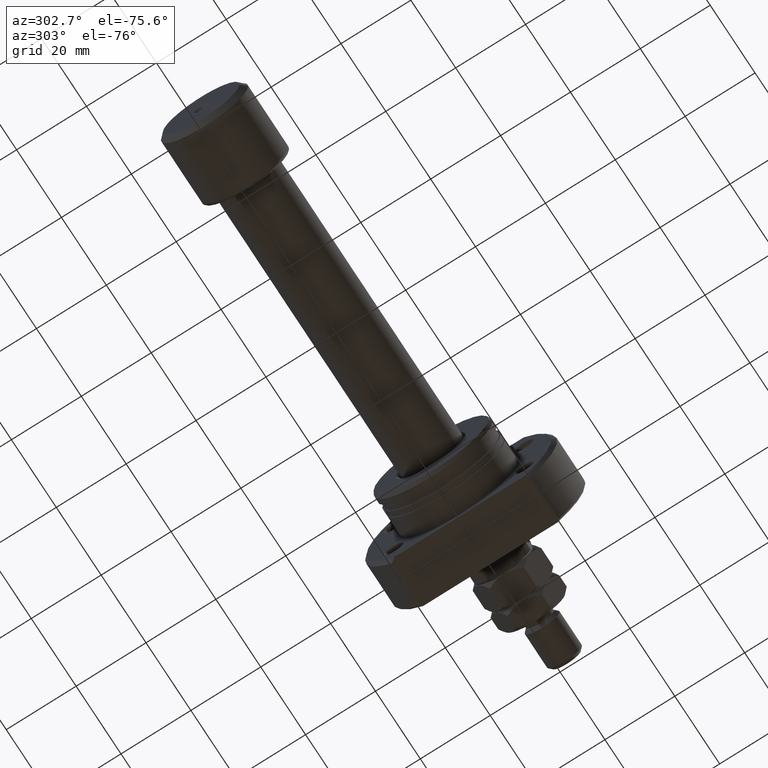
[diagram: clean part render]
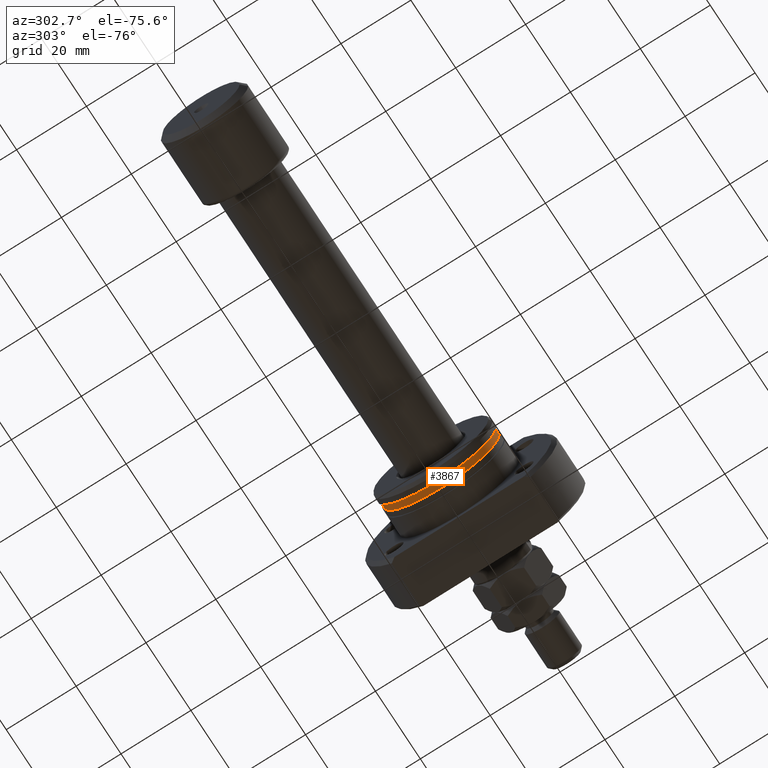
[diagram: same view with one face highlighted and labeled with its STEP entity id]
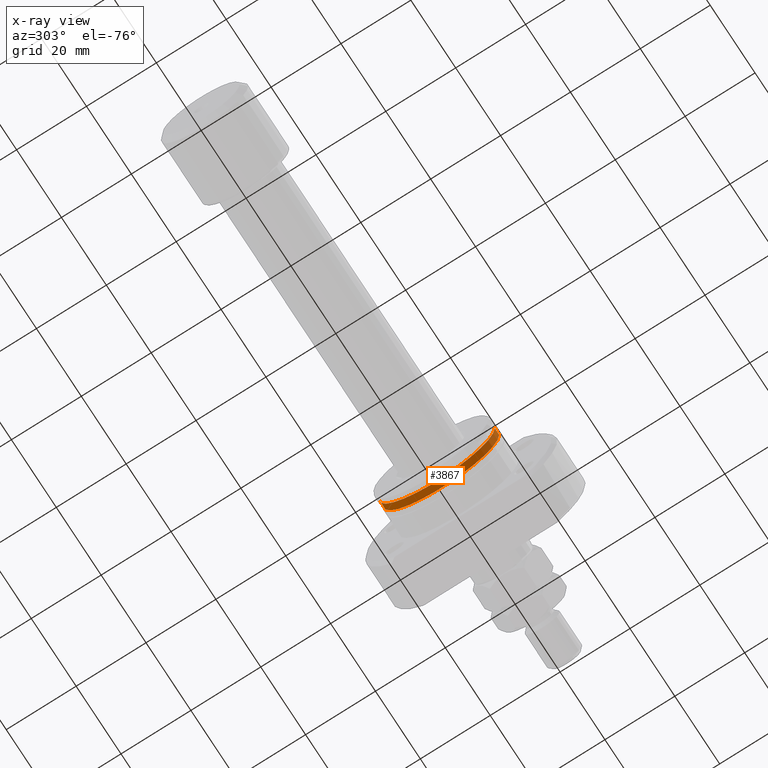
[diagram: x-ray of the same camera — body ghosted, the highlighted face saturated]
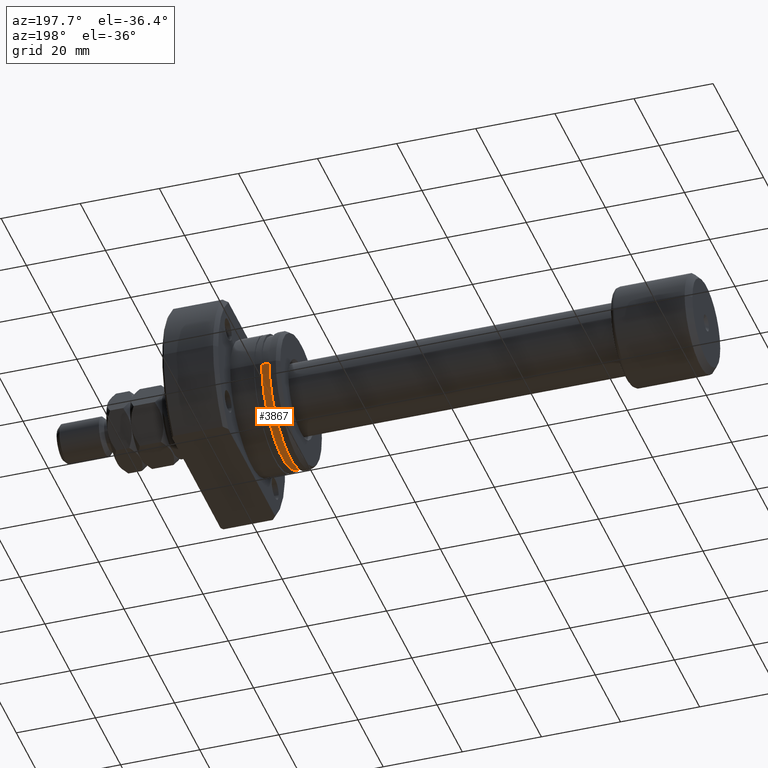
[diagram: same view with one face highlighted and labeled with its STEP entity id]
A machine part, auxiliary view. The second image highlights one B-rep face of the part: STEP entity #3867.
The next image is the same camera in x-ray: the body ghosted, the highlighted face saturated — about 0% of this face is hidden behind the body in this view.
A second angle (auxiliary view) of the same face is appended — the face is thin or edge-on in the first view.
In plain terms, the highlighted cylindrical surface (partial cylindrical patch) has radius 16.5 mm, axis along (1, 0, 0).
Its self-contained STEP definition (entity closure, byte-faithful):
#144 = DIRECTION ( 'NONE',  ( 0.000000000000000000, 1.000000000000000000, 0.000000000000000000 ) ) ;
#180 = CIRCLE ( 'NONE', #1909, 16.49999999999999645 ) ;
#253 = CARTESIAN_POINT ( 'NONE',  ( 2.699999999999782574, 16.49999999999999289, 0.000000000000000000 ) ) ;
#389 = DIRECTION ( 'NONE',  ( 1.000000000000000000, 9.242617352055502386E-18, -0.000000000000000000 ) ) ;
#502 = EDGE_CURVE ( 'NONE', #2560, #3709, #2426, .T. ) ;
#536 = DIRECTION ( 'NONE',  ( 1.000000000000000000, 9.242617352055502386E-18, -0.000000000000000000 ) ) ;
#641 = DIRECTION ( 'NONE',  ( 1.000000000000000000, 9.242617352055502386E-18, -0.000000000000000000 ) ) ;
#995 = CARTESIAN_POINT ( 'NONE',  ( 26.50000000000000711, 16.49999999999999289, 0.000000000000000000 ) ) ;
#1188 = VECTOR ( 'NONE', #2865, 1000.000000000000000 ) ;
#1619 = EDGE_CURVE ( 'NONE', #2010, #3709, #180, .T. ) ;
#1702 = ORIENTED_EDGE ( 'NONE', *, *, #4096, .T. ) ;
#1820 = CARTESIAN_POINT ( 'NONE',  ( 26.50000000000000711, -16.49999999999999289, 2.020667218593132311E-15 ) ) ;
#1909 = AXIS2_PLACEMENT_3D ( 'NONE', #2087, #3548, #3873 ) ;
#2010 = VERTEX_POINT ( 'NONE', #4073 ) ;
#2026 = CYLINDRICAL_SURFACE ( 'NONE', #4300, 16.49999999999999289 ) ;
#2079 = CIRCLE ( 'NONE', #4610, 16.49999999999999289 ) ;
#2087 = CARTESIAN_POINT ( 'NONE',  ( 4.699999999998548894, 4.344030155464744241E-17, 0.000000000000000000 ) ) ;
#2251 = DIRECTION ( 'NONE',  ( 0.000000000000000000, 1.000000000000000000, 0.000000000000000000 ) ) ;
#2426 = LINE ( 'NONE', #995, #1188 ) ;
#2560 = VERTEX_POINT ( 'NONE', #253 ) ;
#2767 = FACE_OUTER_BOUND ( 'NONE', #2920, .T. ) ;
#2865 = DIRECTION ( 'NONE',  ( 1.000000000000000000, 9.242617352055502386E-18, -0.000000000000000000 ) ) ;
#2916 = VECTOR ( 'NONE', #641, 1000.000000000000000 ) ;
#2920 = EDGE_LOOP ( 'NONE', ( #3333, #1702, #3446, #4296 ) ) ;
#2955 = CARTESIAN_POINT ( 'NONE',  ( 2.699999999999782574, 2.495506685054785763E-17, 0.000000000000000000 ) ) ;
#3096 = EDGE_CURVE ( 'NONE', #3969, #2010, #3647, .T. ) ;
#3333 = ORIENTED_EDGE ( 'NONE', *, *, #3096, .F. ) ;
#3446 = ORIENTED_EDGE ( 'NONE', *, *, #502, .T. ) ;
#3548 = DIRECTION ( 'NONE',  ( 1.000000000000000000, 9.242617352055502386E-18, -0.000000000000000000 ) ) ;
#3647 = LINE ( 'NONE', #1820, #2916 ) ;
#3709 = VERTEX_POINT ( 'NONE', #3760 ) ;
#3760 = CARTESIAN_POINT ( 'NONE',  ( 4.699999999998548894, 16.49999999999999645, 0.000000000000000000 ) ) ;
#3848 = CARTESIAN_POINT ( 'NONE',  ( 26.50000000000000711, 2.449293598294708880E-16, 0.000000000000000000 ) ) ;
#3867 = ADVANCED_FACE ( 'NONE', ( #2767 ), #2026, .T. ) ;
#3873 = DIRECTION ( 'NONE',  ( 0.000000000000000000, 1.000000000000000000, 0.000000000000000000 ) ) ;
#3969 = VERTEX_POINT ( 'NONE', #4735 ) ;
#4073 = CARTESIAN_POINT ( 'NONE',  ( 4.699999999998548894, -16.49999999999999645, 2.020667218593132706E-15 ) ) ;
#4096 = EDGE_CURVE ( 'NONE', #3969, #2560, #2079, .T. ) ;
#4296 = ORIENTED_EDGE ( 'NONE', *, *, #1619, .F. ) ;
#4300 = AXIS2_PLACEMENT_3D ( 'NONE', #3848, #536, #144 ) ;
#4610 = AXIS2_PLACEMENT_3D ( 'NONE', #2955, #389, #2251 ) ;
#4735 = CARTESIAN_POINT ( 'NONE',  ( 2.699999999999782574, -16.49999999999999289, 2.020667218593132311E-15 ) ) ;